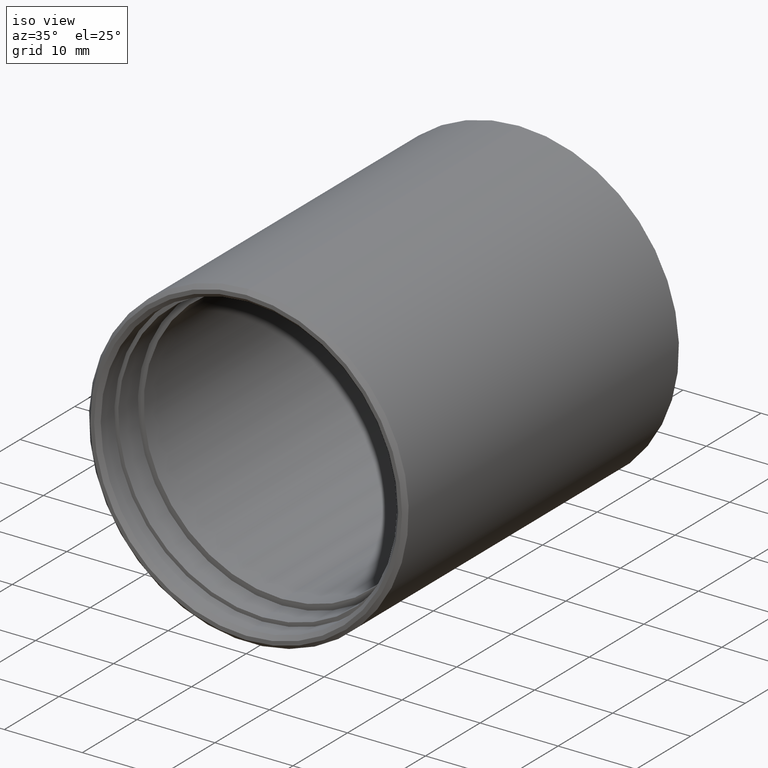
[diagram: clean part render]
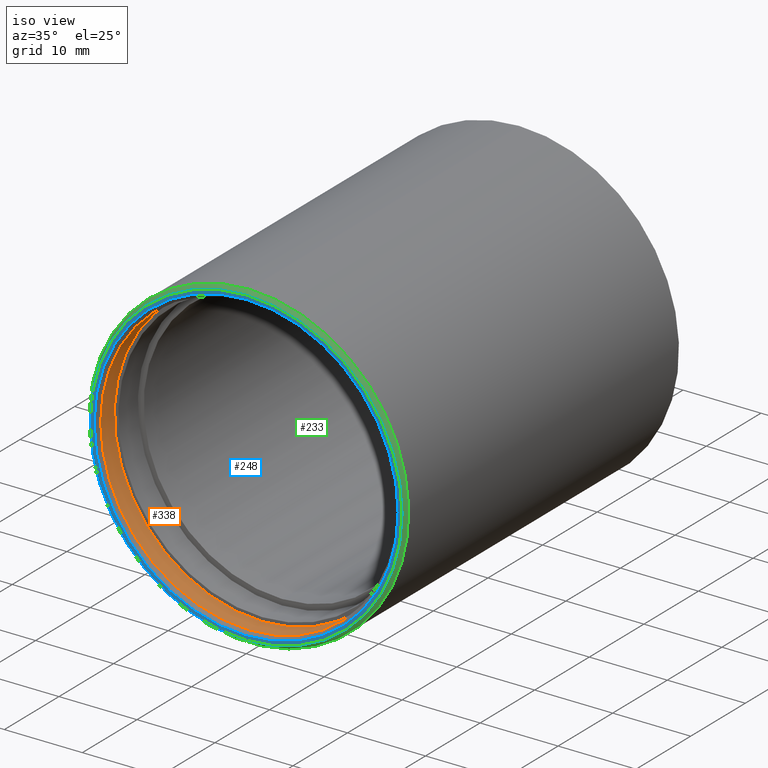
[diagram: same view with three faces highlighted in distinct colors, each labeled with its STEP entity id]
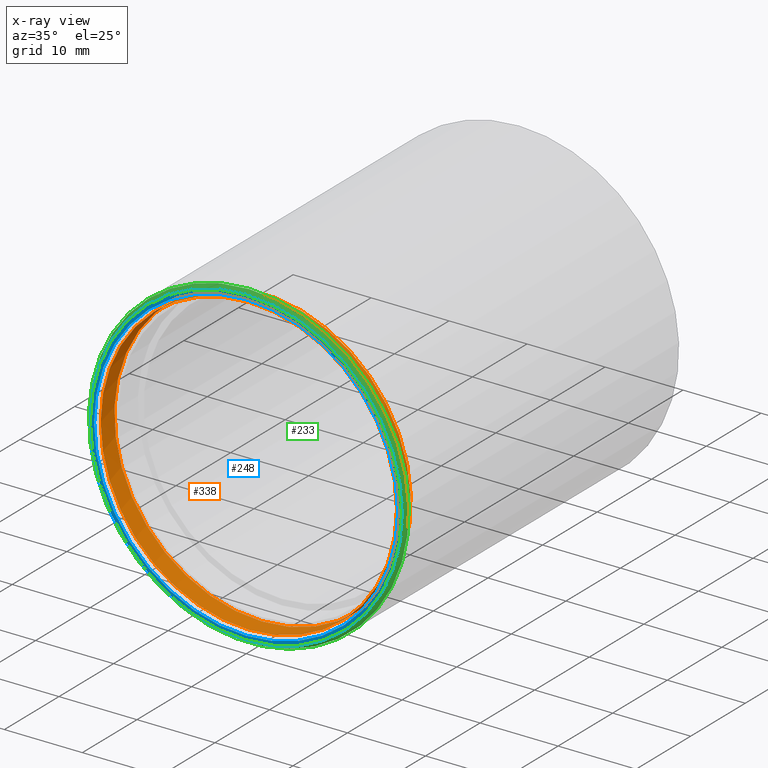
[diagram: x-ray of the same camera — body ghosted, the three highlighted faces saturated]
A machine part, iso view with three faces highlighted in distinct colors.
The next image is the same camera in x-ray (body ghosted, the three faces saturated) — at least one of them is partly hidden behind the body in this view.
Their STEP definitions:

[orange] entity #338 — the highlighted cylindrical surface (bore or boss wall) has radius 19 mm, axis along (-0, -1, -0).
#49 = VERTEX_POINT ( 'NONE', #245 ) ;
#64 = DIRECTION ( 'NONE',  ( -0.000000000000000000, -1.000000000000000000, -0.000000000000000000 ) ) ;
#66 = FACE_OUTER_BOUND ( 'NONE', #106, .T. ) ;
#75 = EDGE_CURVE ( 'NONE', #49, #49, #97, .T. ) ;
#77 = VERTEX_POINT ( 'NONE', #301 ) ;
#95 = CARTESIAN_POINT ( 'NONE',  ( 0.000000000000000000, 3.000000000000000000, 0.000000000000000000 ) ) ;
#97 = CIRCLE ( 'NONE', #187, 18.99999999999999645 ) ;
#98 = DIRECTION ( 'NONE',  ( 0.000000000000000000, 0.000000000000000000, 1.000000000000000000 ) ) ;
#101 = ORIENTED_EDGE ( 'NONE', *, *, #325, .T. ) ;
#106 = EDGE_LOOP ( 'NONE', ( #101 ) ) ;
#122 = CIRCLE ( 'NONE', #313, 18.99999999999999645 ) ;
#133 = EDGE_LOOP ( 'NONE', ( #363 ) ) ;
#141 = DIRECTION ( 'NONE',  ( 0.000000000000000000, -1.000000000000000000, 0.000000000000000000 ) ) ;
#148 = FACE_OUTER_BOUND ( 'NONE', #133, .T. ) ;
#164 = AXIS2_PLACEMENT_3D ( 'NONE', #95, #64, #175 ) ;
#165 = DIRECTION ( 'NONE',  ( 0.000000000000000000, 0.000000000000000000, -1.000000000000000000 ) ) ;
#175 = DIRECTION ( 'NONE',  ( 0.000000000000000000, 0.000000000000000000, -1.000000000000000000 ) ) ;
#179 = CARTESIAN_POINT ( 'NONE',  ( 0.000000000000000000, 0.4999999999999831246, 0.000000000000000000 ) ) ;
#187 = AXIS2_PLACEMENT_3D ( 'NONE', #251, #141, #165 ) ;
#245 = CARTESIAN_POINT ( 'NONE',  ( 0.000000000000000000, 3.000000000000000000, -18.99999999999999645 ) ) ;
#251 = CARTESIAN_POINT ( 'NONE',  ( 0.000000000000000000, 3.000000000000000000, 0.000000000000000000 ) ) ;
#287 = DIRECTION ( 'NONE',  ( 0.000000000000000000, -1.000000000000000000, 0.000000000000000000 ) ) ;
#301 = CARTESIAN_POINT ( 'NONE',  ( 0.000000000000000000, 0.4999999999999831246, 18.99999999999999645 ) ) ;
#313 = AXIS2_PLACEMENT_3D ( 'NONE', #179, #287, #98 ) ;
#325 = EDGE_CURVE ( 'NONE', #77, #77, #122, .T. ) ;
#338 = ADVANCED_FACE ( 'NONE', ( #66, #148 ), #348, .F. ) ;
#348 = CYLINDRICAL_SURFACE ( 'NONE', #164, 18.99999999999999645 ) ;
#363 = ORIENTED_EDGE ( 'NONE', *, *, #75, .F. ) ;

[blue] entity #248 — the highlighted planar face has unit normal (0, 1, 0).
#3 = CIRCLE ( 'NONE', #204, 19.49999999999997513 ) ;
#5 = DIRECTION ( 'NONE',  ( 0.000000000000000000, 0.000000000000000000, 1.000000000000000000 ) ) ;
#8 = DIRECTION ( 'NONE',  ( -0.000000000000000000, -1.000000000000000000, -0.000000000000000000 ) ) ;
#19 = CARTESIAN_POINT ( 'NONE',  ( 0.000000000000000000, 0.000000000000000000, 20.00000000000000355 ) ) ;
#43 = CARTESIAN_POINT ( 'NONE',  ( 0.000000000000000000, 0.000000000000000000, 19.49999999999997513 ) ) ;
#72 = ORIENTED_EDGE ( 'NONE', *, *, #344, .T. ) ;
#99 = DIRECTION ( 'NONE',  ( 0.000000000000000000, 0.000000000000000000, 1.000000000000000000 ) ) ;
#108 = EDGE_LOOP ( 'NONE', ( #371 ) ) ;
#120 = CARTESIAN_POINT ( 'NONE',  ( 0.000000000000000000, 0.000000000000000000, 0.000000000000000000 ) ) ;
#138 = AXIS2_PLACEMENT_3D ( 'NONE', #352, #8, #99 ) ;
#150 = DIRECTION ( 'NONE',  ( 0.000000000000000000, 1.000000000000000000, 0.000000000000000000 ) ) ;
#178 = PLANE ( 'NONE',  #181 ) ;
#180 = EDGE_CURVE ( 'NONE', #183, #183, #216, .T. ) ;
#181 = AXIS2_PLACEMENT_3D ( 'NONE', #120, #259, #202 ) ;
#182 = EDGE_LOOP ( 'NONE', ( #72 ) ) ;
#183 = VERTEX_POINT ( 'NONE', #19 ) ;
#200 = FACE_OUTER_BOUND ( 'NONE', #108, .T. ) ;
#202 = DIRECTION ( 'NONE',  ( 0.000000000000000000, -0.000000000000000000, 1.000000000000000000 ) ) ;
#204 = AXIS2_PLACEMENT_3D ( 'NONE', #288, #150, #5 ) ;
#216 = CIRCLE ( 'NONE', #138, 20.00000000000000355 ) ;
#236 = FACE_BOUND ( 'NONE', #182, .T. ) ;
#248 = ADVANCED_FACE ( 'NONE', ( #200, #236 ), #178, .F. ) ;
#259 = DIRECTION ( 'NONE',  ( 0.000000000000000000, 1.000000000000000000, 0.000000000000000000 ) ) ;
#288 = CARTESIAN_POINT ( 'NONE',  ( 0.000000000000000000, 0.000000000000000000, 0.000000000000000000 ) ) ;
#344 = EDGE_CURVE ( 'NONE', #357, #357, #3, .T. ) ;
#352 = CARTESIAN_POINT ( 'NONE',  ( 0.000000000000000000, 0.000000000000000000, 0.000000000000000000 ) ) ;
#357 = VERTEX_POINT ( 'NONE', #43 ) ;
#371 = ORIENTED_EDGE ( 'NONE', *, *, #180, .T. ) ;

[green] entity #233 — the highlighted conical surface has half-angle 45 deg.
#1 = DIRECTION ( 'NONE',  ( 0.000000000000000000, 0.000000000000000000, 1.000000000000000000 ) ) ;
#4 = DIRECTION ( 'NONE',  ( -0.000000000000000000, 1.000000000000000000, -0.000000000000000000 ) ) ;
#8 = DIRECTION ( 'NONE',  ( -0.000000000000000000, -1.000000000000000000, -0.000000000000000000 ) ) ;
#19 = CARTESIAN_POINT ( 'NONE',  ( 0.000000000000000000, 0.000000000000000000, 20.00000000000000355 ) ) ;
#36 = CARTESIAN_POINT ( 'NONE',  ( 0.000000000000000000, 0.5000000000000004441, 0.000000000000000000 ) ) ;
#71 = AXIS2_PLACEMENT_3D ( 'NONE', #36, #4, #262 ) ;
#92 = AXIS2_PLACEMENT_3D ( 'NONE', #291, #316, #1 ) ;
#99 = DIRECTION ( 'NONE',  ( 0.000000000000000000, 0.000000000000000000, 1.000000000000000000 ) ) ;
#103 = EDGE_LOOP ( 'NONE', ( #157 ) ) ;
#126 = FACE_BOUND ( 'NONE', #103, .T. ) ;
#134 = CARTESIAN_POINT ( 'NONE',  ( 0.000000000000000000, 0.5000000000000004441, 20.50000000000000000 ) ) ;
#138 = AXIS2_PLACEMENT_3D ( 'NONE', #352, #8, #99 ) ;
#157 = ORIENTED_EDGE ( 'NONE', *, *, #180, .F. ) ;
#180 = EDGE_CURVE ( 'NONE', #183, #183, #216, .T. ) ;
#183 = VERTEX_POINT ( 'NONE', #19 ) ;
#214 = EDGE_CURVE ( 'NONE', #266, #266, #345, .T. ) ;
#216 = CIRCLE ( 'NONE', #138, 20.00000000000000355 ) ;
#233 = ADVANCED_FACE ( 'NONE', ( #126, #292 ), #347, .T. ) ;
#262 = DIRECTION ( 'NONE',  ( 0.000000000000000000, 0.000000000000000000, 1.000000000000000000 ) ) ;
#266 = VERTEX_POINT ( 'NONE', #134 ) ;
#275 = ORIENTED_EDGE ( 'NONE', *, *, #214, .F. ) ;
#291 = CARTESIAN_POINT ( 'NONE',  ( 0.000000000000000000, 0.5000000000000004441, 0.000000000000000000 ) ) ;
#292 = FACE_OUTER_BOUND ( 'NONE', #331, .T. ) ;
#316 = DIRECTION ( 'NONE',  ( -0.000000000000000000, 1.000000000000000000, -0.000000000000000000 ) ) ;
#331 = EDGE_LOOP ( 'NONE', ( #275 ) ) ;
#345 = CIRCLE ( 'NONE', #71, 20.50000000000000000 ) ;
#347 = CONICAL_SURFACE ( 'NONE', #92, 20.50000000000000000, 0.7853981633974447263 ) ;
#352 = CARTESIAN_POINT ( 'NONE',  ( 0.000000000000000000, 0.000000000000000000, 0.000000000000000000 ) ) ;